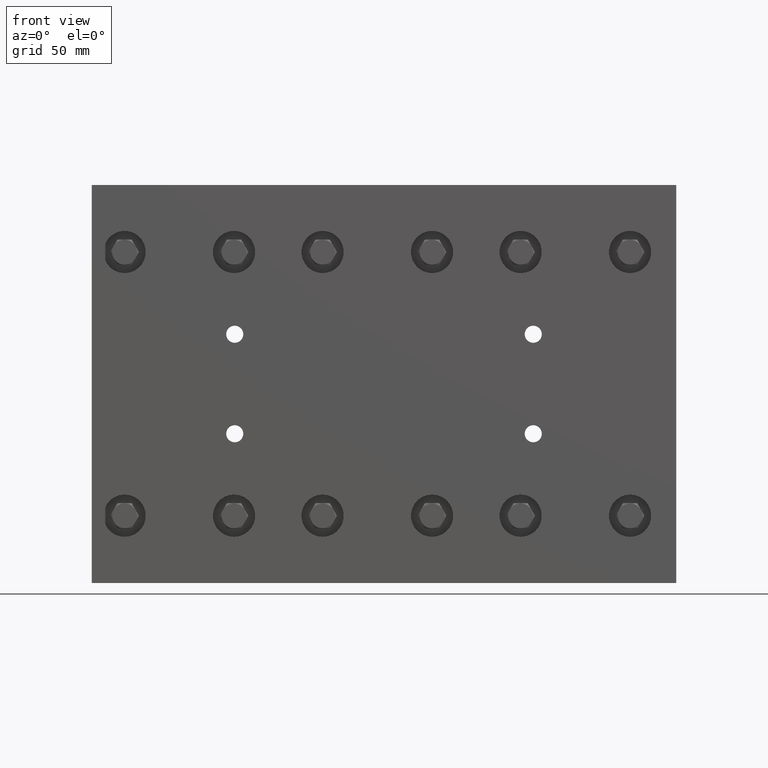
[diagram: clean part render]
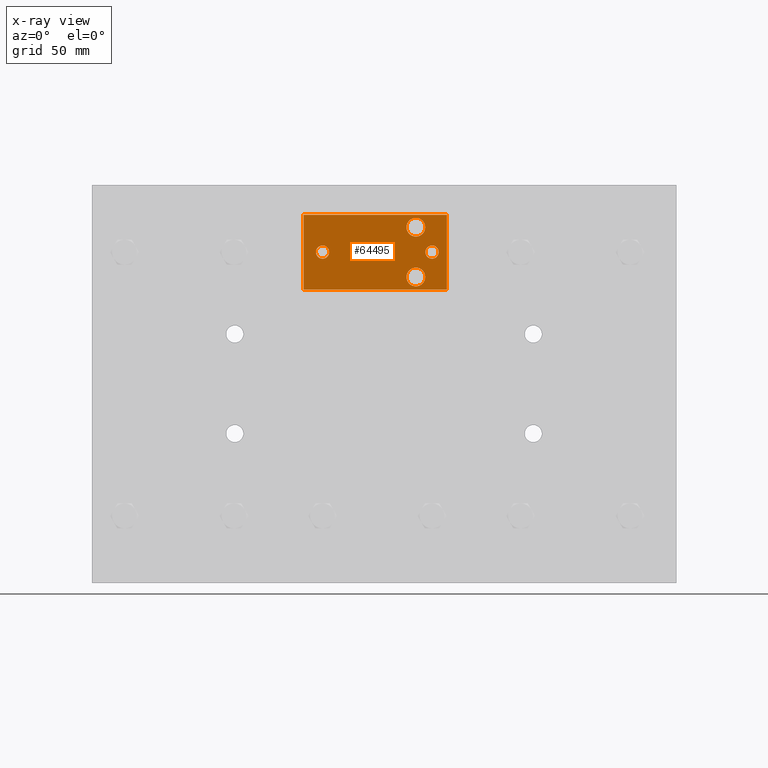
[diagram: x-ray — body ghosted, one internal face saturated and labeled with its STEP entity id]
A machine part, front view, then the same camera in x-ray: the body is ghosted and one INTERNAL B-rep face — a face not visible from any outside direction — is saturated and labeled: STEP entity #64495.
In plain terms, the highlighted planar face has unit normal (0, 1, 0).
Its self-contained STEP definition (entity closure, byte-faithful):
#175 = DIRECTION ( 'NONE',  ( 0.0000000000000000000, -1.000000000000000000, 0.0000000000000000000 ) ) ;
#2552 = ORIENTED_EDGE ( 'NONE', *, *, #67146, .F. ) ;
#2802 = CARTESIAN_POINT ( 'NONE',  ( -1.615000000000000400, 0.7500000000000004400, 1.899999999999998600 ) ) ;
#2839 = CARTESIAN_POINT ( 'NONE',  ( -1.615000000000000900, 0.7500000000000004400, 3.399999999999998600 ) ) ;
#6827 = DIRECTION ( 'NONE',  ( 1.000000000000000000, 0.0000000000000000000, 3.196228004487266600E-016 ) ) ;
#7719 = EDGE_LOOP ( 'NONE', ( #27116 ) ) ;
#8817 = ORIENTED_EDGE ( 'NONE', *, *, #13689, .F. ) ;
#9310 = DIRECTION ( 'NONE',  ( -1.000000000000000000, 0.0000000000000000000, -3.196228004487266600E-016 ) ) ;
#11149 = DIRECTION ( 'NONE',  ( 1.000000000000000000, 0.0000000000000000000, 3.196228004487266600E-016 ) ) ;
#11760 = FACE_BOUND ( 'NONE', #14567, .T. ) ;
#11852 = EDGE_LOOP ( 'NONE', ( #34241, #8817, #16235, #34411 ) ) ;
#12918 = EDGE_CURVE ( 'NONE', #33739, #33739, #52938, .T. ) ;
#13689 = EDGE_CURVE ( 'NONE', #20047, #71803, #67708, .T. ) ;
#14567 = EDGE_LOOP ( 'NONE', ( #2552 ) ) ;
#15398 = AXIS2_PLACEMENT_3D ( 'NONE', #64709, #26407, #71087 ) ;
#16235 = ORIENTED_EDGE ( 'NONE', *, *, #49599, .F. ) ;
#16637 = VECTOR ( 'NONE', #38050, 39.37007874015748100 ) ;
#17922 = VERTEX_POINT ( 'NONE', #2802 ) ;
#18396 = EDGE_CURVE ( 'NONE', #17922, #71803, #42152, .T. ) ;
#19673 = VERTEX_POINT ( 'NONE', #72006 ) ;
#20047 = VERTEX_POINT ( 'NONE', #60114 ) ;
#25097 = VECTOR ( 'NONE', #6827, 39.37007874015748100 ) ;
#25989 = CARTESIAN_POINT ( 'NONE',  ( 0.6399999999999994600, 0.7500000000000004400, 3.149999999999999500 ) ) ;
#26407 = DIRECTION ( 'NONE',  ( -1.054767565121337700E-016, 1.000000000000000000, -3.371277629865665600E-032 ) ) ;
#27116 = ORIENTED_EDGE ( 'NONE', *, *, #12918, .F. ) ;
#28838 = FACE_BOUND ( 'NONE', #81696, .T. ) ;
#31584 = CARTESIAN_POINT ( 'NONE',  ( 1.264999999999999700, 0.7500000000000004400, 3.399999999999999900 ) ) ;
#32103 = CARTESIAN_POINT ( 'NONE',  ( -1.615000000000000400, 0.7500000000000004400, 1.899999999999998600 ) ) ;
#32236 = AXIS2_PLACEMENT_3D ( 'NONE', #2839, #47658, #9310 ) ;
#32375 = DIRECTION ( 'NONE',  ( -1.000000000000000000, 0.0000000000000000000, 0.0000000000000000000 ) ) ;
#32651 = CIRCLE ( 'NONE', #71019, 0.1329999999999996500 ) ;
#33739 = VERTEX_POINT ( 'NONE', #35573 ) ;
#34241 = ORIENTED_EDGE ( 'NONE', *, *, #18396, .T. ) ;
#34280 = DIRECTION ( 'NONE',  ( 0.0000000000000000000, -1.000000000000000000, 0.0000000000000000000 ) ) ;
#34411 = ORIENTED_EDGE ( 'NONE', *, *, #41177, .T. ) ;
#35319 = VECTOR ( 'NONE', #60430, 39.37007874015748100 ) ;
#35573 = CARTESIAN_POINT ( 'NONE',  ( 1.097999999999999400, 0.7500000000000004400, 2.649999999999999900 ) ) ;
#35782 = CARTESIAN_POINT ( 'NONE',  ( 0.4515000000000000700, 0.7500000000000004400, 2.149999999999999500 ) ) ;
#38050 = DIRECTION ( 'NONE',  ( 3.196228004487266600E-016, -0.0000000000000000000, -1.000000000000000000 ) ) ;
#38574 = CARTESIAN_POINT ( 'NONE',  ( -1.235000000000001000, 0.7500000000000004400, 2.649999999999998600 ) ) ;
#40854 = EDGE_CURVE ( 'NONE', #46437, #46437, #55412, .T. ) ;
#41029 = PLANE ( 'NONE',  #32236 ) ;
#41177 = EDGE_CURVE ( 'NONE', #46707, #17922, #54277, .T. ) ;
#42152 = LINE ( 'NONE', #32103, #25097 ) ;
#43281 = AXIS2_PLACEMENT_3D ( 'NONE', #25989, #70652, #32375 ) ;
#45018 = DIRECTION ( 'NONE',  ( 1.000000000000000000, 0.0000000000000000000, 0.0000000000000000000 ) ) ;
#46437 = VERTEX_POINT ( 'NONE', #35782 ) ;
#46707 = VERTEX_POINT ( 'NONE', #49770 ) ;
#46940 = EDGE_CURVE ( 'NONE', #77476, #77476, #70093, .T. ) ;
#47149 = ORIENTED_EDGE ( 'NONE', *, *, #46940, .T. ) ;
#47658 = DIRECTION ( 'NONE',  ( 0.0000000000000000000, 1.000000000000000000, 0.0000000000000000000 ) ) ;
#49255 = ORIENTED_EDGE ( 'NONE', *, *, #40854, .T. ) ;
#49599 = EDGE_CURVE ( 'NONE', #46707, #20047, #57908, .T. ) ;
#49770 = CARTESIAN_POINT ( 'NONE',  ( -1.615000000000000900, 0.7500000000000004400, 3.399999999999998600 ) ) ;
#52938 = CIRCLE ( 'NONE', #78593, 0.1329999999999996500 ) ;
#53937 = CARTESIAN_POINT ( 'NONE',  ( -1.615000000000000900, 0.7500000000000004400, 3.399999999999998600 ) ) ;
#54277 = LINE ( 'NONE', #53937, #35319 ) ;
#55412 = CIRCLE ( 'NONE', #15398, 0.1884999999999999200 ) ;
#57908 = LINE ( 'NONE', #62169, #72895 ) ;
#60114 = CARTESIAN_POINT ( 'NONE',  ( 1.264999999999999700, 0.7500000000000004400, 3.399999999999999900 ) ) ;
#60430 = DIRECTION ( 'NONE',  ( 3.196228004487266600E-016, -0.0000000000000000000, -1.000000000000000000 ) ) ;
#60919 = FACE_BOUND ( 'NONE', #7719, .T. ) ;
#62169 = CARTESIAN_POINT ( 'NONE',  ( -1.615000000000000900, 0.7500000000000004400, 3.399999999999998600 ) ) ;
#62321 = CARTESIAN_POINT ( 'NONE',  ( 0.4514999999999995700, 0.7500000000000004400, 3.149999999999999500 ) ) ;
#62910 = FACE_BOUND ( 'NONE', #82312, .T. ) ;
#64495 = ADVANCED_FACE ( 'NONE', ( #11760, #60919, #62910, #28838, #77895 ), #41029, .F. ) ;
#64709 = CARTESIAN_POINT ( 'NONE',  ( 0.6400000000000000100, 0.7500000000000004400, 2.149999999999999500 ) ) ;
#67146 = EDGE_CURVE ( 'NONE', #19673, #19673, #32651, .T. ) ;
#67708 = LINE ( 'NONE', #31584, #16637 ) ;
#70093 = CIRCLE ( 'NONE', #43281, 0.1884999999999999200 ) ;
#70652 = DIRECTION ( 'NONE',  ( -1.054767565121337700E-016, 1.000000000000000000, -3.371277629865665600E-032 ) ) ;
#71019 = AXIS2_PLACEMENT_3D ( 'NONE', #38574, #175, #45018 ) ;
#71087 = DIRECTION ( 'NONE',  ( -1.000000000000000000, 0.0000000000000000000, 0.0000000000000000000 ) ) ;
#71256 = CARTESIAN_POINT ( 'NONE',  ( 1.264999999999999700, 0.7500000000000004400, 1.899999999999999500 ) ) ;
#71803 = VERTEX_POINT ( 'NONE', #71256 ) ;
#72006 = CARTESIAN_POINT ( 'NONE',  ( -1.102000000000001200, 0.7500000000000004400, 2.649999999999998600 ) ) ;
#72564 = CARTESIAN_POINT ( 'NONE',  ( 0.9649999999999996400, 0.7500000000000004400, 2.649999999999999900 ) ) ;
#72895 = VECTOR ( 'NONE', #11149, 39.37007874015748100 ) ;
#77476 = VERTEX_POINT ( 'NONE', #62321 ) ;
#77895 = FACE_OUTER_BOUND ( 'NONE', #11852, .T. ) ;
#78593 = AXIS2_PLACEMENT_3D ( 'NONE', #72564, #34280, #78964 ) ;
#78964 = DIRECTION ( 'NONE',  ( 1.000000000000000000, 0.0000000000000000000, 0.0000000000000000000 ) ) ;
#81696 = EDGE_LOOP ( 'NONE', ( #47149 ) ) ;
#82312 = EDGE_LOOP ( 'NONE', ( #49255 ) ) ;